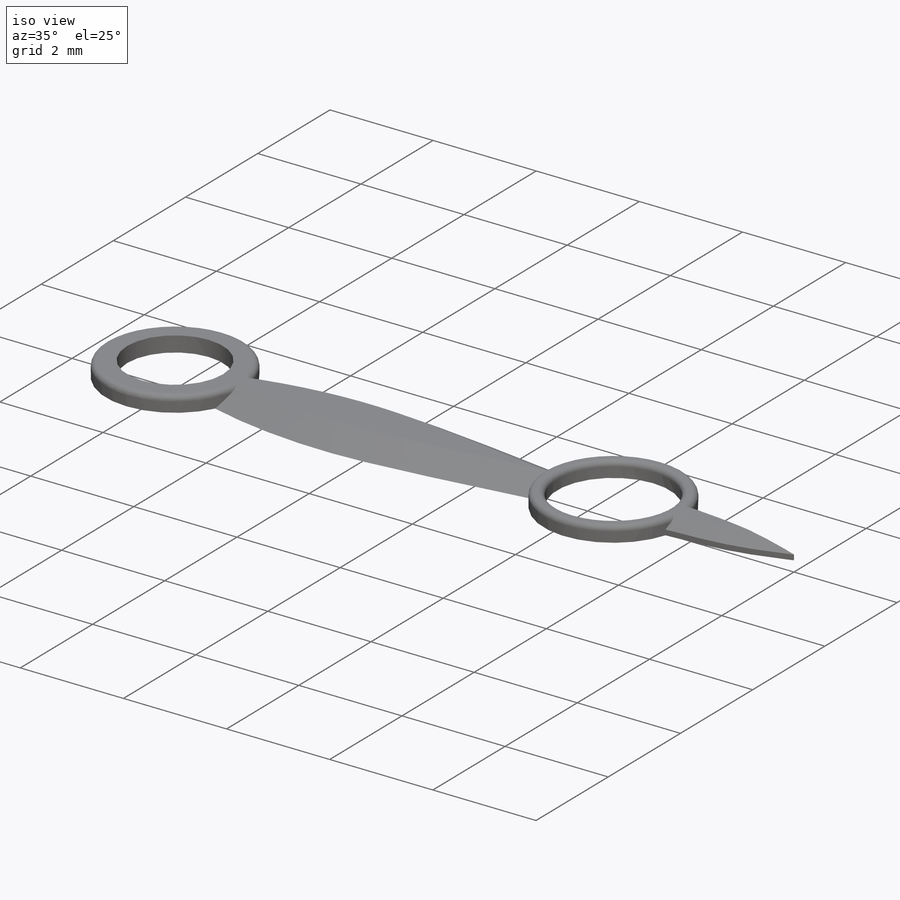
[diagram: iso view]
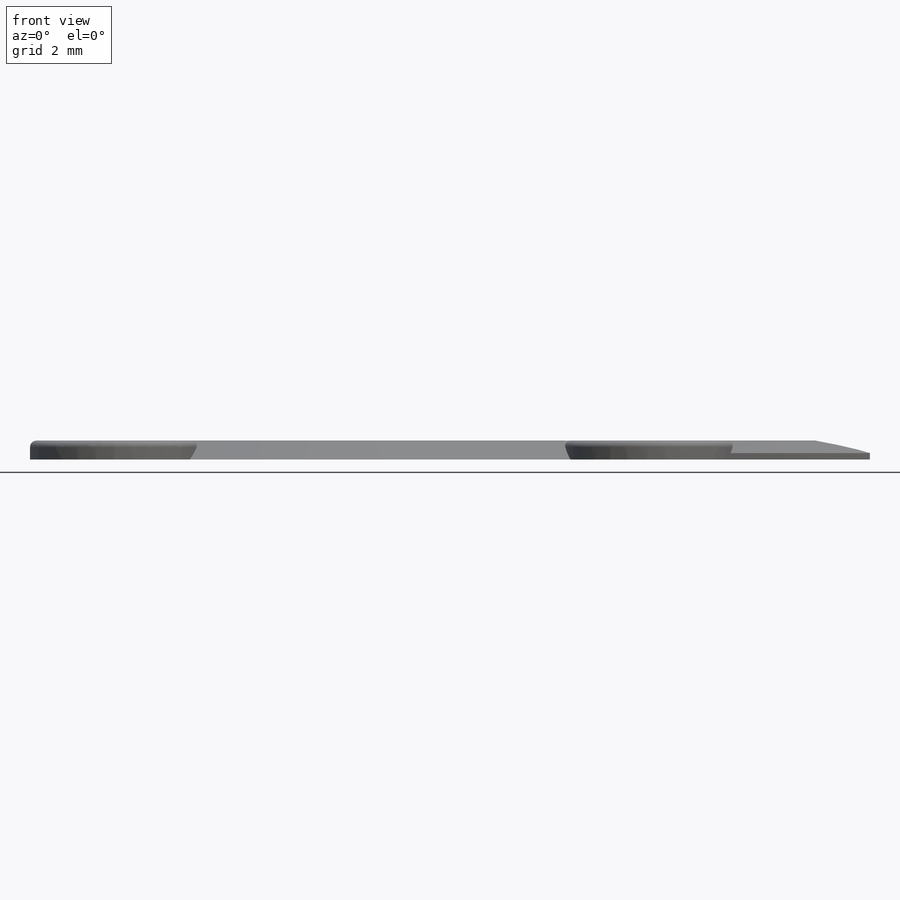
[diagram: front view]
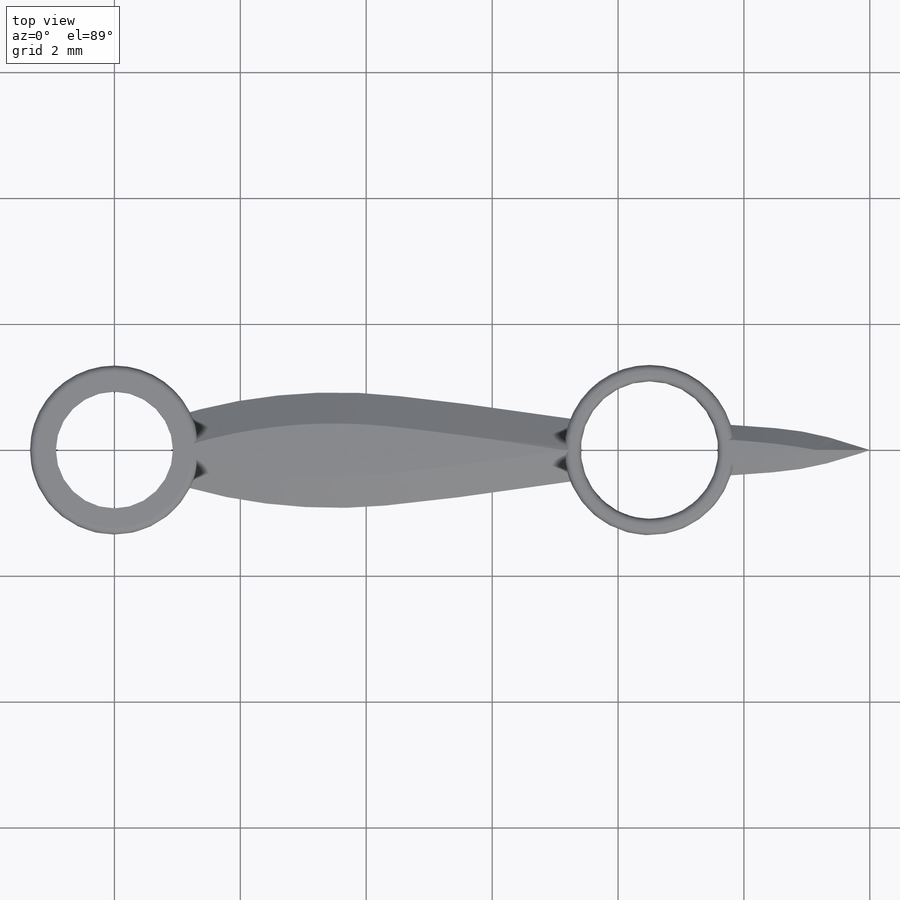
[diagram: top view]
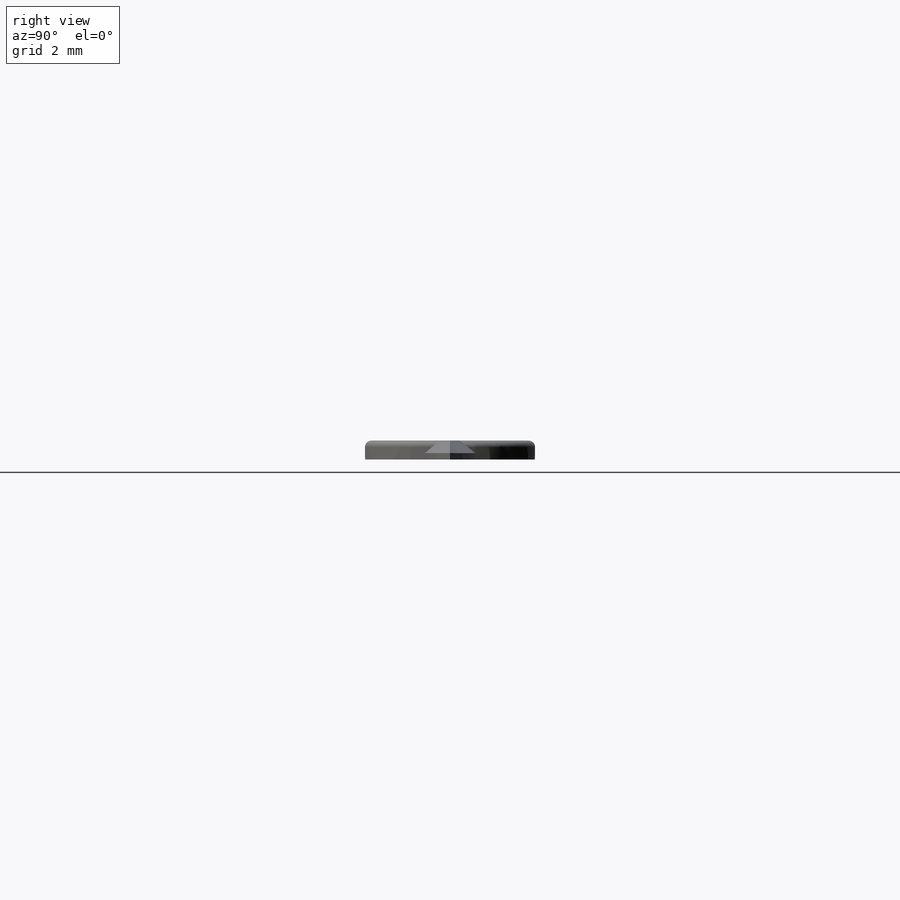
[diagram: right view]
SOLIDWORKS PART (.sldprt)
format: sldprt  version: not decoded by parser v0  size: 232,448 bytes
history: native  units: mm
features: chamfer x2, material x1, sketch x1, extrude x1, fillet x1 (+11 scaffold rows collapsed)
feature tree (17):
  scaffold x11  (default folders/planes/origin — collapsed)
  material  "Material <not specified>"
  sketch  "Sketch1"  dims[D1=1.86mm D3=2.7mm D7=1.34mm D2=12.0mm D4=0.6mm D5=0.5mm D6=0.4mm D8=8.5mm]
  extrude  "Boss-Extrude1"  Depth=0.3mm
  chamfer  "Chamfer1"  Distance=0.3mm Angle=59deg
  fillet  "Fillet1"  Radius=0.1mm
  chamfer  "Chamfer2"  Distance=0.2mm Angle=51deg
decode coverage: 5 of 5 modeling features carry decoded parameters
note: suppression state not decoded; provenance and decode notes live in map.json
